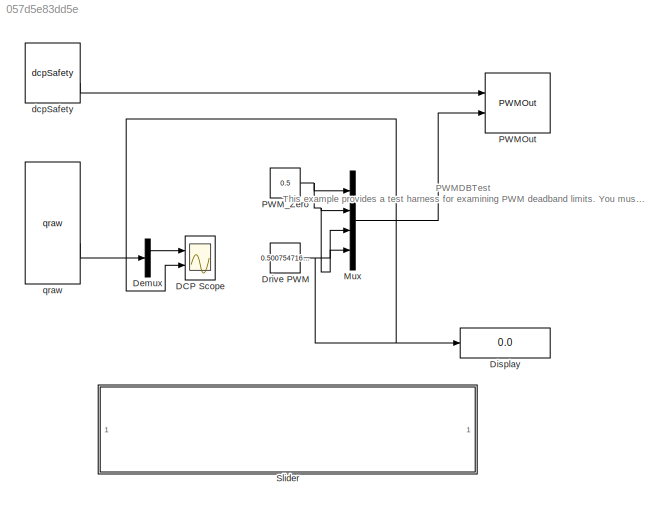
MODEL slx_057d5e83dd5e
KIND model
CONFIG AbsTol = auto
CONFIG EnableMultiTasking = on
CONFIG FixedStep = 0.001
CONFIG MaxStep = auto
CONFIG MinStep = auto
CONFIG RelTol = 1e-3
CONFIG SampleTimeConstraint = Unconstrained
CONFIG Solver = ode5
CONFIG SolverName = ode5
CONFIG StartTime = 0.0
CONFIG StopTime = inf
BLOCK [Scope] DCP Scope
  NumInputPorts = 2
  Ports = [2]
  ScopeSpecificationString = Simulink.scopes.TimeScopeBlockCfg('CurrentConfiguration', extmgr.ConfigurationSet(extmgr.Configuration('Core','General UI',true,'FigureColor',[1 1 1]),extmgr.Configuration('Core','Source UI',true),extmgr.Configuration('Sources','WiredSimulink',true),extmgr.Configuration('Visuals','Time Domain',true,'SerializedDisplays',{struct('MinYLimReal','-13911.625','MaxYLimReal','9914.625','YLabelReal','Relat...<+2691ch>
BLOCK [Demux] Demux
  DisplayOption = bar
  Outputs = 2
  Ports = [1, 2]
BLOCK [Display] Display
  Decimation = 1
  Ports = [1]
BLOCK [Constant] Drive PWM
  Value = 0.5007547169811
BLOCK [Mux] Mux
  DisplayOption = bar
  Ports = [4, 1]
BLOCK [Reference] PWMOut  REF=dcpctrl/PWMOut
  Ports = [2]
  SourceBlock = dcpctrl/PWMOut
  SourceType = SubSystem
BLOCK [Constant] PWM_Zero
  Value = 0.5
BLOCK [SubSystem] Slider
  DialogController = hmiCreateDDGDialog
  IsWebBlock = on
  MaskHideContents = on
  Ports = []
  RequestExecContextInheritance = off
  Variant = off
BLOCK [Reference] dcpSafety  REF=dcpctrl/dcpSafety
  Ports = [0, 2]
  SourceBlock = dcpctrl/dcpSafety
  SourceType = SubSystem
BLOCK [Reference] qraw  REF=dcpctrl/qraw
  Ports = [0, 5]
  SourceBlock = dcpctrl/qraw
  SourceType = SubSystem
ANNOTATION (root): PWMDBTest This example provides a test harness for examining PWM deadband limits. You must manually select which axis you would like to control/monitor.
LINE Demux:1 -> DCP Scope:1
NET Drive PWM:1 -> DCP Scope:2, Display:1, Mux:3
LINE Mux:1 -> PWMOut:2
NET PWM_Zero:1 -> Mux:1, Mux:2, Mux:4
LINE dcpSafety:2 -> PWMOut:1
LINE qraw:4 -> Demux:1
note: NET lines group one-source signal fan-out (src -> all destinations, sorted); 1:1 wires keep LINE
